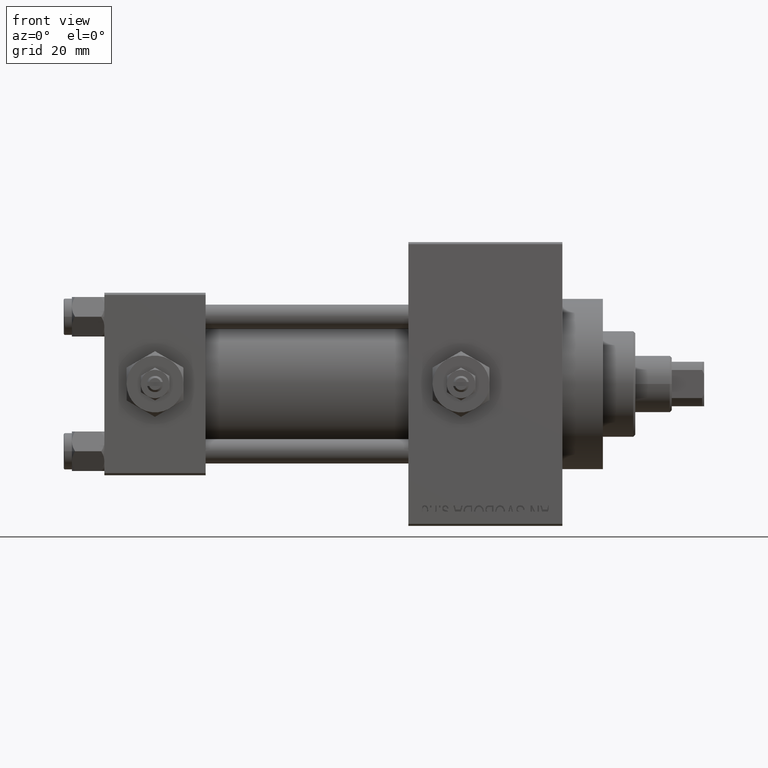
[diagram: clean part render]
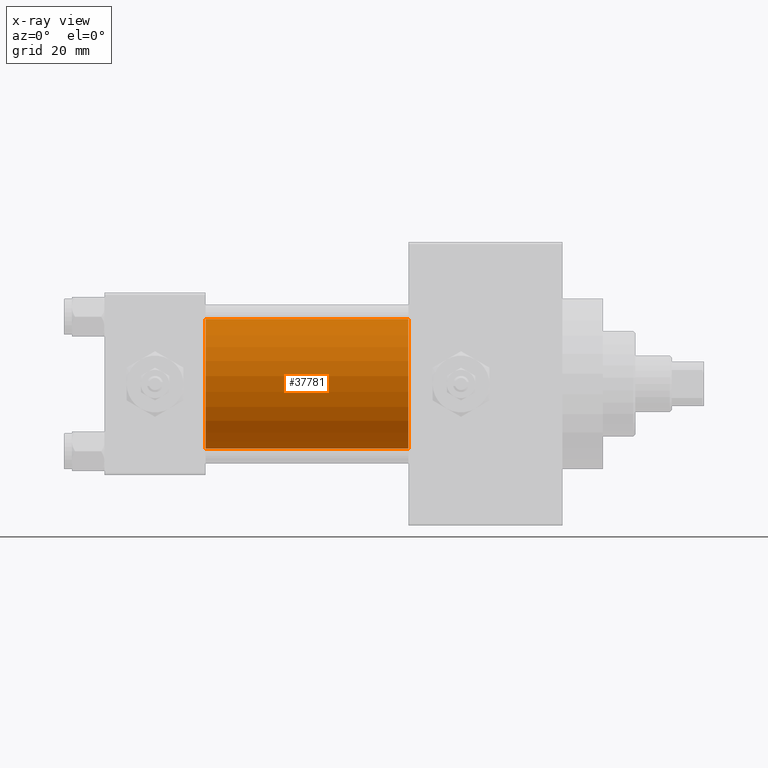
[diagram: x-ray — body ghosted, one internal face saturated and labeled with its STEP entity id]
A machine part, front view, then the same camera in x-ray: the body is ghosted and one INTERNAL B-rep face — a face not visible from any outside direction — is saturated and labeled: STEP entity #37781.
In plain terms, the highlighted cylindrical surface (partial cylindrical patch) has radius 16 mm, axis along (-1, -0, -0).
Its self-contained STEP definition (entity closure, byte-faithful):
#847 = AXIS2_PLACEMENT_3D ( 'NONE', #39195, #46158, #19350 ) ;
#1538 = ORIENTED_EDGE ( 'NONE', *, *, #23532, .F. ) ;
#1847 = VERTEX_POINT ( 'NONE', #27857 ) ;
#3739 = CARTESIAN_POINT ( 'NONE',  ( 75.00000000000001421, -2.602085213965210642E-15, 16.00000000000000000 ) ) ;
#3934 = AXIS2_PLACEMENT_3D ( 'NONE', #39156, #24976, #5386 ) ;
#4978 = ORIENTED_EDGE ( 'NONE', *, *, #36561, .T. ) ;
#5386 = DIRECTION ( 'NONE',  ( 0.000000000000000000, 0.000000000000000000, -1.000000000000000000 ) ) ;
#8060 = VECTOR ( 'NONE', #23571, 1000.000000000000000 ) ;
#10223 = EDGE_CURVE ( 'NONE', #1847, #24796, #11104, .T. ) ;
#10952 = FACE_OUTER_BOUND ( 'NONE', #25774, .T. ) ;
#11104 = CIRCLE ( 'NONE', #847, 16.00000000000000000 ) ;
#11924 = LINE ( 'NONE', #3739, #8060 ) ;
#12297 = LINE ( 'NONE', #42570, #36121 ) ;
#12967 = VERTEX_POINT ( 'NONE', #21911 ) ;
#14444 = CYLINDRICAL_SURFACE ( 'NONE', #16346, 16.00000000000000000 ) ;
#16346 = AXIS2_PLACEMENT_3D ( 'NONE', #21878, #18645, #37031 ) ;
#18645 = DIRECTION ( 'NONE',  ( -1.000000000000000000, -0.000000000000000000, -0.000000000000000000 ) ) ;
#19350 = DIRECTION ( 'NONE',  ( 0.000000000000000000, 0.000000000000000000, -1.000000000000000000 ) ) ;
#21878 = CARTESIAN_POINT ( 'NONE',  ( 75.00000000000001421, -2.602085213965210642E-15, 0.000000000000000000 ) ) ;
#21903 = CARTESIAN_POINT ( 'NONE',  ( 25.00000000000000000, -6.426503353294456087E-16, -16.00000000000000000 ) ) ;
#21911 = CARTESIAN_POINT ( 'NONE',  ( 25.00000000000000000, -2.602085213965210642E-15, 16.00000000000000000 ) ) ;
#23532 = EDGE_CURVE ( 'NONE', #1847, #12967, #11924, .T. ) ;
#23571 = DIRECTION ( 'NONE',  ( -1.000000000000000000, -0.000000000000000000, -0.000000000000000000 ) ) ;
#24796 = VERTEX_POINT ( 'NONE', #39906 ) ;
#24976 = DIRECTION ( 'NONE',  ( 1.000000000000000000, 0.000000000000000000, 0.000000000000000000 ) ) ;
#25774 = EDGE_LOOP ( 'NONE', ( #42699, #4978, #33569, #1538 ) ) ;
#27857 = CARTESIAN_POINT ( 'NONE',  ( 75.00000000000001421, -2.602085213965210642E-15, 16.00000000000000000 ) ) ;
#28526 = VERTEX_POINT ( 'NONE', #21903 ) ;
#31638 = DIRECTION ( 'NONE',  ( -1.000000000000000000, -0.000000000000000000, -0.000000000000000000 ) ) ;
#33569 = ORIENTED_EDGE ( 'NONE', *, *, #48699, .F. ) ;
#36121 = VECTOR ( 'NONE', #31638, 1000.000000000000000 ) ;
#36561 = EDGE_CURVE ( 'NONE', #24796, #28526, #12297, .T. ) ;
#37031 = DIRECTION ( 'NONE',  ( 0.000000000000000000, 0.000000000000000000, 1.000000000000000000 ) ) ;
#37781 = ADVANCED_FACE ( 'NONE', ( #10952 ), #14444, .F. ) ;
#39156 = CARTESIAN_POINT ( 'NONE',  ( 25.00000000000000000, -2.602085213965210642E-15, 0.000000000000000000 ) ) ;
#39195 = CARTESIAN_POINT ( 'NONE',  ( 75.00000000000001421, -2.602085213965210642E-15, 0.000000000000000000 ) ) ;
#39618 = CIRCLE ( 'NONE', #3934, 16.00000000000000000 ) ;
#39906 = CARTESIAN_POINT ( 'NONE',  ( 75.00000000000001421, -6.426503353294456087E-16, -16.00000000000000000 ) ) ;
#42570 = CARTESIAN_POINT ( 'NONE',  ( 75.00000000000001421, -6.426503353294456087E-16, -16.00000000000000000 ) ) ;
#42699 = ORIENTED_EDGE ( 'NONE', *, *, #10223, .T. ) ;
#46158 = DIRECTION ( 'NONE',  ( 1.000000000000000000, 0.000000000000000000, 0.000000000000000000 ) ) ;
#48699 = EDGE_CURVE ( 'NONE', #12967, #28526, #39618, .T. ) ;